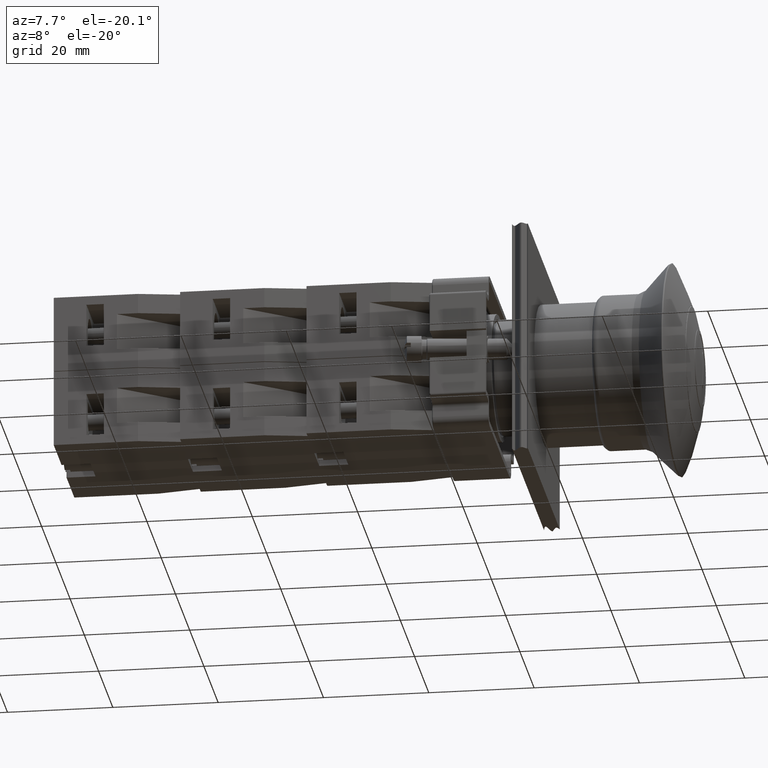
[diagram: clean part render]
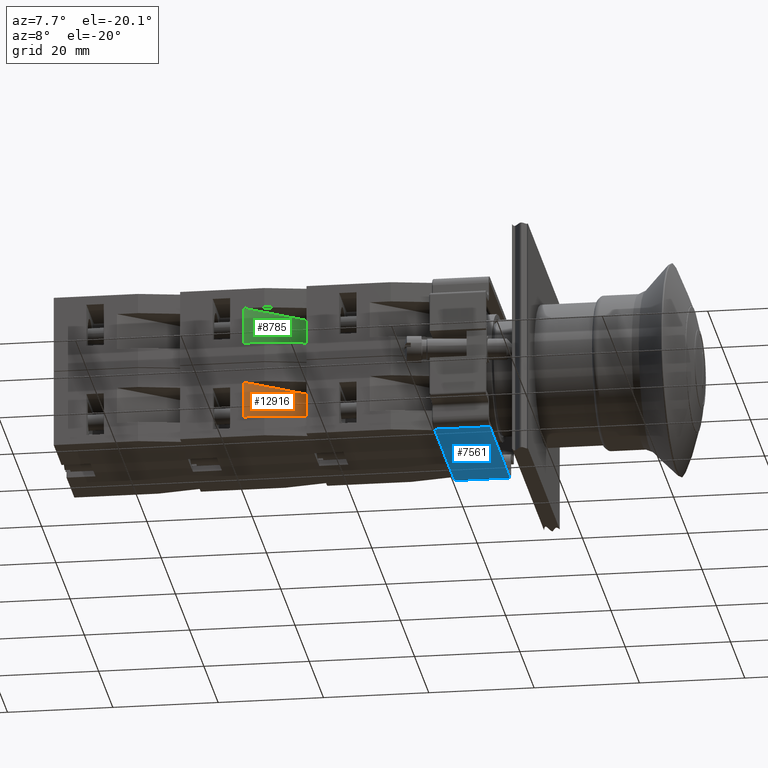
[diagram: same view with three faces highlighted in distinct colors, each labeled with its STEP entity id]
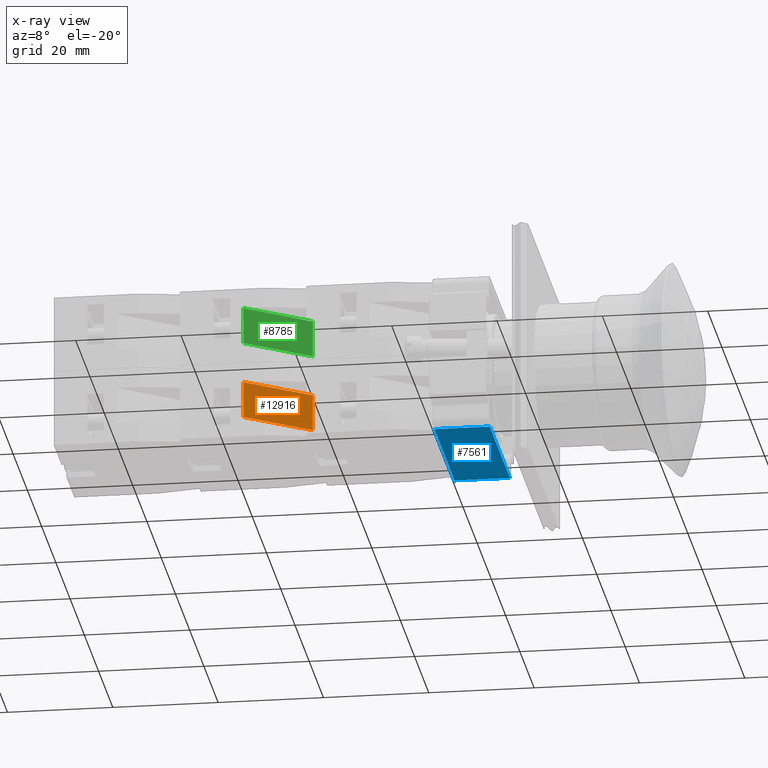
[diagram: x-ray of the same camera — body ghosted, the three highlighted faces saturated]
A machine part, auxiliary view with three faces highlighted in distinct colors.
The next image is the same camera in x-ray (body ghosted, the three faces saturated) — at least one of them is partly hidden behind the body in this view.
Their STEP definitions:

[orange] entity #12916 — the highlighted planar face has unit normal (-0.6, 0.8, 0).
#12861=CARTESIAN_POINT('',(-24.936741828918464,-0.202926676720378,10.850000000000000));
#12862=VERTEX_POINT('',#12861);
#12869=CARTESIAN_POINT('',(-15.936741828918466,11.797073323279626,10.850000000000000));
#12870=VERTEX_POINT('',#12869);
#12871=CARTESIAN_POINT('',(-24.936741828918464,-0.202926676720378,10.850000000000000));
#12872=DIRECTION('',(0.600000000000000,0.800000000000000,0.0));
#12873=VECTOR('',#12872,15.000000000000002);
#12874=LINE('',#12871,#12873);
#12875=EDGE_CURVE('',#12862,#12870,#12874,.T.);
#12886=CARTESIAN_POINT('',(-15.936741828918466,11.797073323279626,7.350000000000000));
#12887=DIRECTION('',(-0.800000000000000,0.600000000000000,0.0));
#12888=DIRECTION('',(0.0,0.0,1.0));
#12889=AXIS2_PLACEMENT_3D('',#12886,#12887,#12888);
#12890=PLANE('',#12889);
#12891=CARTESIAN_POINT('',(-15.936741828918466,11.797073323279626,3.850000000000001));
#12892=VERTEX_POINT('',#12891);
#12893=CARTESIAN_POINT('',(-24.936741828918464,-0.202926676720378,3.850000000000001));
#12894=VERTEX_POINT('',#12893);
#12895=CARTESIAN_POINT('',(-15.936741828918466,11.797073323279626,3.850000000000001));
#12896=DIRECTION('',(-0.600000000000000,-0.800000000000000,0.0));
#12897=VECTOR('',#12896,15.000000000000002);
#12898=LINE('',#12895,#12897);
#12899=EDGE_CURVE('',#12892,#12894,#12898,.T.);
#12900=ORIENTED_EDGE('',*,*,#12899,.F.);
#12901=CARTESIAN_POINT('',(-15.936741828918466,11.797073323279626,10.850000000000000));
#12902=DIRECTION('',(0.0,0.0,-1.0));
#12903=VECTOR('',#12902,6.999999999999999);
#12904=LINE('',#12901,#12903);
#12905=EDGE_CURVE('',#12870,#12892,#12904,.T.);
#12906=ORIENTED_EDGE('',*,*,#12905,.F.);
#12907=ORIENTED_EDGE('',*,*,#12875,.F.);
#12908=CARTESIAN_POINT('',(-24.936741828918464,-0.202926676720378,3.850000000000001));
#12909=DIRECTION('',(0.0,0.0,1.0));
#12910=VECTOR('',#12909,6.999999999999999);
#12911=LINE('',#12908,#12910);
#12912=EDGE_CURVE('',#12894,#12862,#12911,.T.);
#12913=ORIENTED_EDGE('',*,*,#12912,.F.);
#12914=EDGE_LOOP('',(#12900,#12906,#12907,#12913));
#12915=FACE_OUTER_BOUND('',#12914,.T.);
#12916=ADVANCED_FACE('',(#12915),#12890,.F.);

[blue] entity #7561 — the highlighted planar face has unit normal (0, 0, -1).
#3020=CARTESIAN_POINT('',(14.967219691723891,25.142864828157556,10.500000000000000));
#3021=VERTEX_POINT('',#3020);
#3056=CARTESIAN_POINT('',(-13.332780308276099,25.142864828157556,10.500000000000000));
#3057=VERTEX_POINT('',#3056);
#3089=CARTESIAN_POINT('',(14.967219691723891,25.142864828157556,10.500000000000000));
#3090=DIRECTION('',(-1.0,0.0,0.0));
#3091=VECTOR('',#3090,28.299999999999990);
#3092=LINE('',#3089,#3091);
#3093=EDGE_CURVE('',#3021,#3057,#3092,.T.);
#3119=CARTESIAN_POINT('',(14.967219691723891,25.142864828157556,0.0));
#3120=VERTEX_POINT('',#3119);
#3128=CARTESIAN_POINT('',(14.967219691723891,25.142864828157556,0.0));
#3129=DIRECTION('',(0.0,0.0,1.0));
#3130=VECTOR('',#3129,10.500000000000000);
#3131=LINE('',#3128,#3130);
#3132=EDGE_CURVE('',#3120,#3021,#3131,.T.);
#6001=CARTESIAN_POINT('',(-13.332780308276099,25.142864828157556,0.0));
#6002=VERTEX_POINT('',#6001);
#6010=CARTESIAN_POINT('',(14.967219691723891,25.142864828157556,0.0));
#6011=DIRECTION('',(-1.0,0.0,0.0));
#6012=VECTOR('',#6011,28.299999999999990);
#6013=LINE('',#6010,#6012);
#6014=EDGE_CURVE('',#3120,#6002,#6013,.T.);
#7539=CARTESIAN_POINT('',(-13.332780308276099,25.142864828157556,0.0));
#7540=DIRECTION('',(0.0,0.0,1.0));
#7541=VECTOR('',#7540,10.500000000000000);
#7542=LINE('',#7539,#7541);
#7543=EDGE_CURVE('',#6002,#3057,#7542,.T.);
#7550=CARTESIAN_POINT('',(-13.332780308276099,25.142864828157556,0.0));
#7551=DIRECTION('',(0.0,1.0,0.0));
#7552=DIRECTION('',(0.0,0.0,1.0));
#7553=AXIS2_PLACEMENT_3D('',#7550,#7551,#7552);
#7554=PLANE('',#7553);
#7555=ORIENTED_EDGE('',*,*,#3093,.F.);
#7556=ORIENTED_EDGE('',*,*,#3132,.F.);
#7557=ORIENTED_EDGE('',*,*,#6014,.T.);
#7558=ORIENTED_EDGE('',*,*,#7543,.T.);
#7559=EDGE_LOOP('',(#7555,#7556,#7557,#7558));
#7560=FACE_OUTER_BOUND('',#7559,.T.);
#7561=ADVANCED_FACE('',(#7560),#7554,.T.);

[green] entity #8785 — the highlighted face is a freeform B-spline surface patch.
#8730=CARTESIAN_POINT('',(-44.936741828918457,11.797073323279610,10.850000000000000));
#8731=VERTEX_POINT('',#8730);
#8738=CARTESIAN_POINT('',(-35.936741828918450,-0.202926676720384,10.850000000000000));
#8739=VERTEX_POINT('',#8738);
#8740=CARTESIAN_POINT('',(-35.936741828918450,-0.202926676720384,10.850000000000000));
#8741=DIRECTION('',(-0.600000000000000,0.800000000000000,0.0));
#8742=VECTOR('',#8741,15.0);
#8743=LINE('',#8740,#8742);
#8744=EDGE_CURVE('',#8739,#8731,#8743,.T.);
#8755=CARTESIAN_POINT('',(-44.936741828918464,11.797073323279616,3.850000000000000));
#8756=CARTESIAN_POINT('',(-44.936741828918464,11.797073323279616,10.850000000000000));
#8757=CARTESIAN_POINT('',(-35.936741828918450,-0.202926676720383,3.850000000000000));
#8758=CARTESIAN_POINT('',(-35.936741828918450,-0.202926676720383,10.850000000000000));
#8759=B_SPLINE_SURFACE_WITH_KNOTS('',1,1,((#8755,#8757),(#8756,#8758)),.UNSPECIFIED.,.F.,.F.,.U.,(2,2),(2,2),(0.0,7.0),(0.0,15.000000000000007),.UNSPECIFIED.);
#8760=CARTESIAN_POINT('',(-44.936741828918457,11.797073323279610,3.850000000000001));
#8761=VERTEX_POINT('',#8760);
#8762=CARTESIAN_POINT('',(-35.936741828918450,-0.202926676720384,3.850000000000001));
#8763=VERTEX_POINT('',#8762);
#8764=CARTESIAN_POINT('',(-44.936741828918457,11.797073323279610,3.850000000000001));
#8765=DIRECTION('',(0.600000000000000,-0.800000000000000,0.0));
#8766=VECTOR('',#8765,15.0);
#8767=LINE('',#8764,#8766);
#8768=EDGE_CURVE('',#8761,#8763,#8767,.T.);
#8769=ORIENTED_EDGE('',*,*,#8768,.T.);
#8770=CARTESIAN_POINT('',(-35.936741828918450,-0.202926676720384,10.850000000000000));
#8771=DIRECTION('',(0.0,0.0,-1.0));
#8772=VECTOR('',#8771,6.999999999999999);
#8773=LINE('',#8770,#8772);
#8774=EDGE_CURVE('',#8739,#8763,#8773,.T.);
#8775=ORIENTED_EDGE('',*,*,#8774,.F.);
#8776=ORIENTED_EDGE('',*,*,#8744,.T.);
#8777=CARTESIAN_POINT('',(-44.936741828918457,11.797073323279610,3.850000000000001));
#8778=DIRECTION('',(0.0,0.0,1.0));
#8779=VECTOR('',#8778,6.999999999999999);
#8780=LINE('',#8777,#8779);
#8781=EDGE_CURVE('',#8761,#8731,#8780,.T.);
#8782=ORIENTED_EDGE('',*,*,#8781,.F.);
#8783=EDGE_LOOP('',(#8769,#8775,#8776,#8782));
#8784=FACE_OUTER_BOUND('',#8783,.T.);
#8785=ADVANCED_FACE('',(#8784),#8759,.F.);